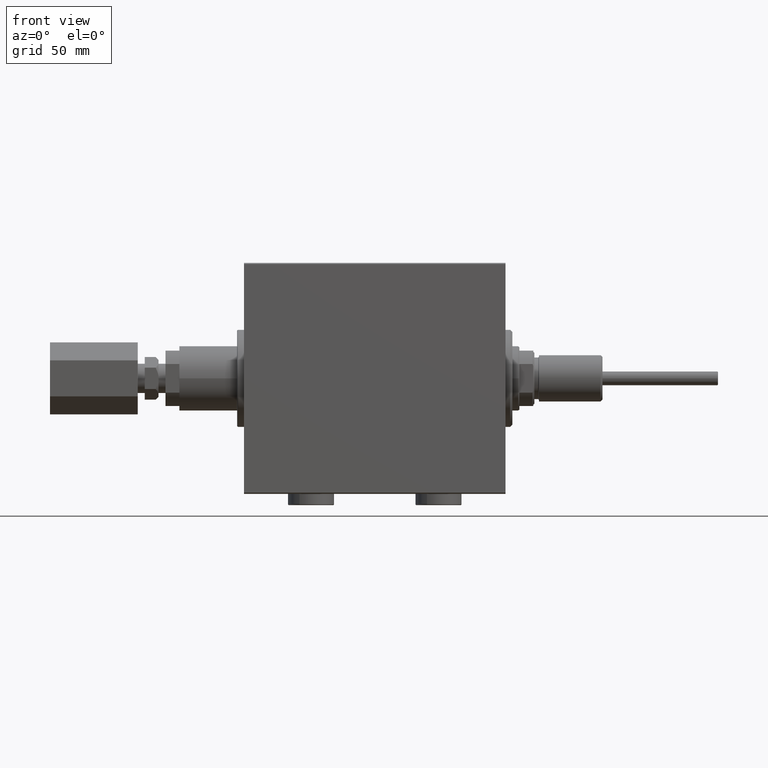
[diagram: clean part render]
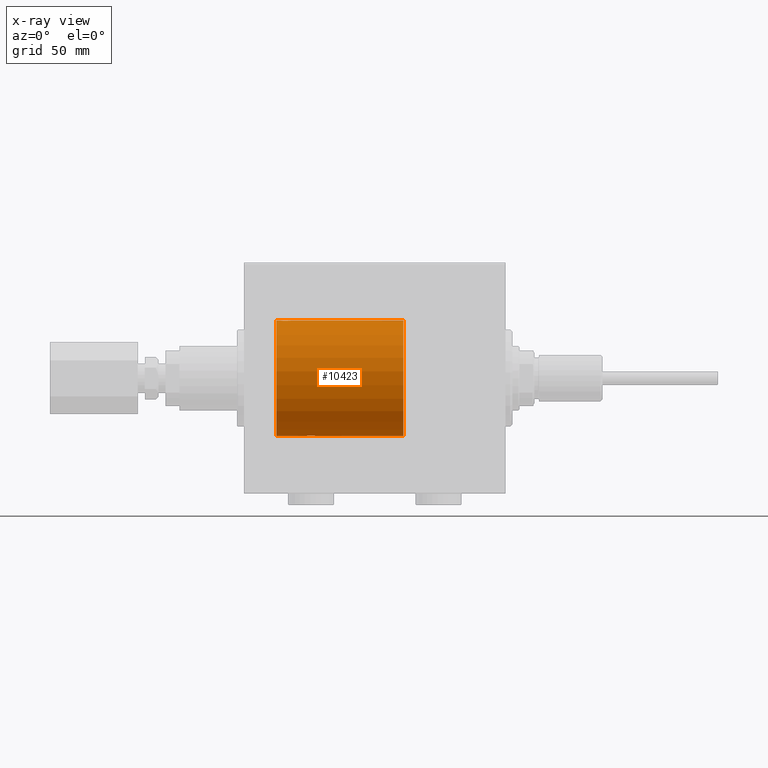
[diagram: x-ray — body ghosted, one internal face saturated and labeled with its STEP entity id]
A machine part, front view, then the same camera in x-ray: the body is ghosted and one INTERNAL B-rep face — a face not visible from any outside direction — is saturated and labeled: STEP entity #10423.
In plain terms, the highlighted cylindrical surface (partial cylindrical patch) has radius 25 mm, axis along (1, 0, -0).
Its self-contained STEP definition (entity closure, byte-faithful):
#219 = B_SPLINE_CURVE_WITH_KNOTS ( 'NONE', 3,
 ( #24403, #5950, #38771, #42728, #5705, #2009, #47144, #27876, #17019, #35528, #8916, #35763, #13335, #23930, #24168, #27415, #20695, #42969, #5469, #28361, #12618, #31824, #39010, #4992, #43447, #19983, #43209, #42493, #9393, #46896, #8687, #35304, #1289, #31357 ),
 .UNSPECIFIED., .F., .F.,
 ( 4, 2, 2, 2, 2, 2, 2, 2, 2, 2, 2, 2, 2, 2, 2, 2, 4 ),
 ( 5.636207356056362162E-21, 0.0004888140276038924377, 0.0009776280552077848754, 0.001466442082811677313, 0.001955256110415569751, 0.002444070138019462188, 0.002932884165623354626, 0.003421698193227247064, 0.003910512220831139502, 0.004399326248435031506, 0.004888140276038924377, 0.005376954303642817248, 0.005865768331246709252, 0.006354582358850601256, 0.006843396386454494128, 0.007332210414058386999, 0.007821024441662279003 ),
 .UNSPECIFIED. ) ;
#249 = VERTEX_POINT ( 'NONE', #18396 ) ;
#897 = EDGE_LOOP ( 'NONE', ( #971, #32752, #39483, #18009, #22902, #12848, #31761, #8625 ) ) ;
#971 = ORIENTED_EDGE ( 'NONE', *, *, #34905, .F. ) ;
#1289 = CARTESIAN_POINT ( 'NONE',  ( 92.70000000000000284, 0.1632133729155548774, 25.00000000000000355 ) ) ;
#1332 = AXIS2_PLACEMENT_3D ( 'NONE', #35415, #13696, #9745 ) ;
#1381 = AXIS2_PLACEMENT_3D ( 'NONE', #28736, #14193, #3119 ) ;
#2009 = CARTESIAN_POINT ( 'NONE',  ( 97.44651678820869733, 1.109060198064586666, 24.97584694923137505 ) ) ;
#2014 = AXIS2_PLACEMENT_3D ( 'NONE', #9703, #44029, #47461 ) ;
#2017 = VECTOR ( 'NONE', #31748, 1000.000000000000000 ) ;
#2165 = CARTESIAN_POINT ( 'NONE',  ( 84.03592030623264009, 2.499940606140151900, -24.87469189697261029 ) ) ;
#3119 = DIRECTION ( 'NONE',  ( 0.000000000000000000, 0.000000000000000000, 1.000000000000000000 ) ) ;
#3634 = CARTESIAN_POINT ( 'NONE',  ( 86.36861818252482692, 1.254434665533512794, -24.96887599906796495 ) ) ;
#4116 = CARTESIAN_POINT ( 'NONE',  ( 86.18758834612096109, 1.525124164792379222, -24.95380474534677262 ) ) ;
#4992 = CARTESIAN_POINT ( 'NONE',  ( 93.67549655812818798, 1.988066470813627307, 24.92099187803980698 ) ) ;
#5158 = VECTOR ( 'NONE', #34353, 1000.000000000000000 ) ;
#5399 = LINE ( 'NONE', #16702, #2017 ) ;
#5469 = CARTESIAN_POINT ( 'NONE',  ( 94.87198227724999811, 2.483775543901323601, 24.87633190989611620 ) ) ;
#5491 = CARTESIAN_POINT ( 'NONE',  ( 99.20000000000000284, 3.061616997868382254E-15, -25.00000000000000000 ) ) ;
#5702 = EDGE_CURVE ( 'NONE', #24055, #40022, #10702, .T. ) ;
#5705 = CARTESIAN_POINT ( 'NONE',  ( 97.57206391457593497, 0.8063280894284455824, 24.98745245851526064 ) ) ;
#5829 = CYLINDRICAL_SURFACE ( 'NONE', #1381, 25.00000000000000000 ) ;
#5950 = CARTESIAN_POINT ( 'NONE',  ( 97.70000000000000284, 0.1652919547268412448, 24.99999999999999289 ) ) ;
#6114 = CARTESIAN_POINT ( 'NONE',  ( 85.00463913299816454, 2.372637051600642089, -24.88723676875457969 ) ) ;
#6225 = CARTESIAN_POINT ( 'NONE',  ( 44.20000000000000284, 0.000000000000000000, 25.00000000000000000 ) ) ;
#6355 = CARTESIAN_POINT ( 'NONE',  ( 81.71623131730842715, 0.3278008924763887166, -24.99836206720143750 ) ) ;
#6849 = CARTESIAN_POINT ( 'NONE',  ( 86.68364115014315985, 0.3289998300458046310, -24.99834914448732803 ) ) ;
#8625 = ORIENTED_EDGE ( 'NONE', *, *, #19012, .T. ) ;
#8687 = CARTESIAN_POINT ( 'NONE',  ( 92.78033563915884940, 0.6495680347195791349, 24.99207398768918864 ) ) ;
#8916 = CARTESIAN_POINT ( 'NONE',  ( 96.72633503512339814, 1.986787236855537264, 24.92109717386378165 ) ) ;
#9317 = CARTESIAN_POINT ( 'NONE',  ( 82.31730287024107895, 1.652881481536647268, -24.94556728625771669 ) ) ;
#9393 = CARTESIAN_POINT ( 'NONE',  ( 92.95307623591048696, 1.108237982093033480, 24.97588368351298982 ) ) ;
#9703 = CARTESIAN_POINT ( 'NONE',  ( 44.20000000000000284, 0.000000000000000000, 0.000000000000000000 ) ) ;
#9745 = DIRECTION ( 'NONE',  ( 0.000000000000000000, 0.000000000000000000, 1.000000000000000000 ) ) ;
#10043 = CARTESIAN_POINT ( 'NONE',  ( 81.70000000000000284, -1.201333969079745055E-15, -25.00000000000000000 ) ) ;
#10423 = ADVANCED_FACE ( 'NONE', ( #35891 ), #5829, .F. ) ;
#10702 = CIRCLE ( 'NONE', #2014, 25.00000000000000000 ) ;
#11252 = CARTESIAN_POINT ( 'NONE',  ( 86.57237109198584335, 0.8054273576766418641, -24.98748174524255461 ) ) ;
#11519 = CIRCLE ( 'NONE', #1332, 25.00000000000000000 ) ;
#12138 = VERTEX_POINT ( 'NONE', #22134 ) ;
#12146 = B_SPLINE_CURVE_WITH_KNOTS ( 'NONE', 3,
 ( #10043, #25059, #6355, #21353, #20613, #21601, #28280, #28039, #9317, #17182, #35680, #36416, #31981, #43364, #20858, #35924, #2165, #32226, #47297, #13485, #6114, #37888, #40626, #14462, #22091, #45066, #4116, #3634, #25805, #11252, #14705, #6849, #41114, #33451 ),
 .UNSPECIFIED., .F., .F.,
 ( 4, 2, 2, 2, 2, 2, 2, 2, 2, 2, 2, 2, 2, 2, 2, 2, 4 ),
 ( 1.839871823107361655E-19, 0.0004888140276038956903, 0.0009776280552077911638, 0.001466442082811686854, 0.001955256110415582328, 0.002444070138019477801, 0.002932884165623373708, 0.003421698193227268748, 0.003910512220831164655, 0.004399326248435060129, 0.004888140276038954735, 0.005376954303642851075, 0.005865768331246746549, 0.006354582358850642890, 0.006843396386454538363, 0.007332210414058434704, 0.007821024441662331045 ),
 .UNSPECIFIED. ) ;
#12618 = CARTESIAN_POINT ( 'NONE',  ( 94.39536086700186956, 2.372637051600611002, 24.88723676875459034 ) ) ;
#12643 = LINE ( 'NONE', #5491, #13124 ) ;
#12848 = ORIENTED_EDGE ( 'NONE', *, *, #5702, .T. ) ;
#13124 = VECTOR ( 'NONE', #46678, 1000.000000000000000 ) ;
#13335 = CARTESIAN_POINT ( 'NONE',  ( 96.30765995523903200, 2.247131495942852997, 24.89888190765473297 ) ) ;
#13485 = CARTESIAN_POINT ( 'NONE',  ( 84.84874342732641139, 2.419890192637131232, -24.88262770889313202 ) ) ;
#13696 = DIRECTION ( 'NONE',  ( -1.000000000000000000, 0.000000000000000000, 0.000000000000000000 ) ) ;
#14193 = DIRECTION ( 'NONE',  ( -1.000000000000000000, -0.000000000000000000, -0.000000000000000000 ) ) ;
#14462 = CARTESIAN_POINT ( 'NONE',  ( 85.72450344187178928, 1.988066470813649955, -24.92099187803979632 ) ) ;
#14591 = EDGE_CURVE ( 'NONE', #44485, #44871, #219, .T. ) ;
#14705 = CARTESIAN_POINT ( 'NONE',  ( 86.61966436084118470, 0.6495680347195885718, -24.99207398768919219 ) ) ;
#16702 = CARTESIAN_POINT ( 'NONE',  ( 99.20000000000000284, 0.000000000000000000, 25.00000000000000000 ) ) ;
#17019 = CARTESIAN_POINT ( 'NONE',  ( 97.08269712975892674, 1.652881481536627284, 24.94556728625771669 ) ) ;
#17182 = CARTESIAN_POINT ( 'NONE',  ( 82.54785002149175455, 1.883339088673210426, -24.92922739080160710 ) ) ;
#17694 = VECTOR ( 'NONE', #46457, 1000.000000000000000 ) ;
#17905 = CARTESIAN_POINT ( 'NONE',  ( 97.70000000000000284, -5.800234900828521566E-18, 25.00000000000000000 ) ) ;
#18009 = ORIENTED_EDGE ( 'NONE', *, *, #14591, .T. ) ;
#18396 = CARTESIAN_POINT ( 'NONE',  ( 86.70000000000001705, 3.061616978466108082E-15, -25.00000000000000000 ) ) ;
#19012 = EDGE_CURVE ( 'NONE', #29844, #249, #12146, .T. ) ;
#19771 = CARTESIAN_POINT ( 'NONE',  ( 99.20000000000000284, 3.061616997868382254E-15, -25.00000000000000000 ) ) ;
#19983 = CARTESIAN_POINT ( 'NONE',  ( 93.31576698070014686, 1.651337078997071384, 24.94567646296265551 ) ) ;
#20370 = CARTESIAN_POINT ( 'NONE',  ( 81.70000000000000284, -1.201333969079745055E-15, -25.00000000000000000 ) ) ;
#20613 = CARTESIAN_POINT ( 'NONE',  ( 81.82793608542407071, 0.8063280894284560185, -24.98745245851526064 ) ) ;
#20695 = CARTESIAN_POINT ( 'NONE',  ( 95.36407969376736560, 2.499940606140120813, 24.87469189697262095 ) ) ;
#20858 = CARTESIAN_POINT ( 'NONE',  ( 83.55083484000675753, 2.419847904056447785, -24.88263203448060779 ) ) ;
#21353 = CARTESIAN_POINT ( 'NONE',  ( 81.77980964520837404, 0.6474866336855796822, -24.99212517028518477 ) ) ;
#21601 = CARTESIAN_POINT ( 'NONE',  ( 81.95348321179130835, 1.109060198064600433, -24.97584694923138215 ) ) ;
#22091 = CARTESIAN_POINT ( 'NONE',  ( 85.85075206354797217, 1.884745564839666487, -24.92912799315484662 ) ) ;
#22134 = CARTESIAN_POINT ( 'NONE',  ( 99.20000000000000284, 0.000000000000000000, 25.00000000000000000 ) ) ;
#22902 = ORIENTED_EDGE ( 'NONE', *, *, #44698, .T. ) ;
#23930 = CARTESIAN_POINT ( 'NONE',  ( 96.00683588887133624, 2.371819214216734473, 24.88731391344728294 ) ) ;
#24055 = VERTEX_POINT ( 'NONE', #6225 ) ;
#24168 = CARTESIAN_POINT ( 'NONE',  ( 95.84916515999327657, 2.419847904056417143, 24.88263203448060423 ) ) ;
#24403 = CARTESIAN_POINT ( 'NONE',  ( 97.70000000000000284, -5.800234900828521566E-18, 25.00000000000000000 ) ) ;
#25059 = CARTESIAN_POINT ( 'NONE',  ( 81.70000000000000284, 0.1652919547268407729, -25.00000000000000355 ) ) ;
#25805 = CARTESIAN_POINT ( 'NONE',  ( 86.44692376408954715, 1.108237982093043250, -24.97588368351298627 ) ) ;
#26166 = CARTESIAN_POINT ( 'NONE',  ( 99.20000000000000284, 3.061616997868382254E-15, -25.00000000000000000 ) ) ;
#27415 = CARTESIAN_POINT ( 'NONE',  ( 95.52637449227346167, 2.484060984458426269, 24.87630362147114127 ) ) ;
#27876 = CARTESIAN_POINT ( 'NONE',  ( 97.18824666821940639, 1.524323445682826739, 24.95385641887458661 ) ) ;
#28039 = CARTESIAN_POINT ( 'NONE',  ( 82.21175333178058509, 1.524323445682844280, -24.95385641887458306 ) ) ;
#28280 = CARTESIAN_POINT ( 'NONE',  ( 82.03029543590132278, 1.252624798282899077, -24.96896960740658500 ) ) ;
#28361 = CARTESIAN_POINT ( 'NONE',  ( 94.55125657267362271, 2.419890192637103254, 24.88262770889313913 ) ) ;
#28736 = CARTESIAN_POINT ( 'NONE',  ( 99.20000000000000284, 0.000000000000000000, 0.000000000000000000 ) ) ;
#29844 = VERTEX_POINT ( 'NONE', #20370 ) ;
#31357 = CARTESIAN_POINT ( 'NONE',  ( 92.70000000000000284, -1.940203396391078535E-23, 25.00000000000000000 ) ) ;
#31748 = DIRECTION ( 'NONE',  ( -1.000000000000000000, -0.000000000000000000, -0.000000000000000000 ) ) ;
#31761 = ORIENTED_EDGE ( 'NONE', *, *, #32064, .F. ) ;
#31770 = EDGE_CURVE ( 'NONE', #12138, #44485, #5399, .T. ) ;
#31824 = CARTESIAN_POINT ( 'NONE',  ( 94.09254763180203440, 2.247309494740935776, 24.89886665287248135 ) ) ;
#31981 = CARTESIAN_POINT ( 'NONE',  ( 83.09234004476095947, 2.247131495942878310, -24.89888190765472942 ) ) ;
#32064 = EDGE_CURVE ( 'NONE', #29844, #40022, #42278, .T. ) ;
#32226 = CARTESIAN_POINT ( 'NONE',  ( 84.36226476613386183, 2.500059064463620473, -24.87467999146394959 ) ) ;
#32752 = ORIENTED_EDGE ( 'NONE', *, *, #47505, .F. ) ;
#33110 = VERTEX_POINT ( 'NONE', #26166 ) ;
#33451 = CARTESIAN_POINT ( 'NONE',  ( 86.70000000000001705, 3.061616978466108082E-15, -25.00000000000000000 ) ) ;
#34353 = DIRECTION ( 'NONE',  ( -1.000000000000000000, -0.000000000000000000, -0.000000000000000000 ) ) ;
#34905 = EDGE_CURVE ( 'NONE', #33110, #249, #12643, .T. ) ;
#35304 = CARTESIAN_POINT ( 'NONE',  ( 92.71635884985691689, 0.3289998300457990243, 24.99834914448732448 ) ) ;
#35415 = CARTESIAN_POINT ( 'NONE',  ( 99.20000000000000284, 0.000000000000000000, 0.000000000000000000 ) ) ;
#35528 = CARTESIAN_POINT ( 'NONE',  ( 96.85214997850826535, 1.883339088673186890, 24.92922739080161065 ) ) ;
#35680 = CARTESIAN_POINT ( 'NONE',  ( 82.67366496487657912, 1.986787236855559691, -24.92109717386378165 ) ) ;
#35763 = CARTESIAN_POINT ( 'NONE',  ( 96.45304113529935819, 2.169541443998001640, 24.90585268157805032 ) ) ;
#35891 = FACE_OUTER_BOUND ( 'NONE', #897, .T. ) ;
#35924 = CARTESIAN_POINT ( 'NONE',  ( 83.87362550772657244, 2.484060984458457355, -24.87630362147113772 ) ) ;
#36416 = CARTESIAN_POINT ( 'NONE',  ( 82.94695886470064750, 2.169541443998026953, -24.90585268157804677 ) ) ;
#37888 = CARTESIAN_POINT ( 'NONE',  ( 85.30745236819798549, 2.247309494740967750, -24.89886665287248491 ) ) ;
#38771 = CARTESIAN_POINT ( 'NONE',  ( 97.68376868269162117, 0.3278008924763861631, 24.99836206720144105 ) ) ;
#39010 = CARTESIAN_POINT ( 'NONE',  ( 93.94628466518807386, 2.169035936979771151, 24.90589343070811168 ) ) ;
#39483 = ORIENTED_EDGE ( 'NONE', *, *, #31770, .T. ) ;
#39763 = LINE ( 'NONE', #43246, #17694 ) ;
#40022 = VERTEX_POINT ( 'NONE', #46008 ) ;
#40505 = CARTESIAN_POINT ( 'NONE',  ( 92.70000000000000284, -1.940203396391078535E-23, 25.00000000000000000 ) ) ;
#40626 = CARTESIAN_POINT ( 'NONE',  ( 85.45371533481194604, 2.169035936979796464, -24.90589343070811168 ) ) ;
#41114 = CARTESIAN_POINT ( 'NONE',  ( 86.70000000000004547, 0.1632133729155565149, -25.00000000000001421 ) ) ;
#42278 = LINE ( 'NONE', #19771, #5158 ) ;
#42493 = CARTESIAN_POINT ( 'NONE',  ( 93.03138181747520719, 1.254434665533499693, 24.96887599906795785 ) ) ;
#42728 = CARTESIAN_POINT ( 'NONE',  ( 97.62019035479158902, 0.6474866336855745752, 24.99212517028518121 ) ) ;
#42969 = CARTESIAN_POINT ( 'NONE',  ( 95.03773523386620070, 2.500059064463590275, 24.87467999146395314 ) ) ;
#43209 = CARTESIAN_POINT ( 'NONE',  ( 93.21241165387910144, 1.525124164792362347, 24.95380474534677262 ) ) ;
#43246 = CARTESIAN_POINT ( 'NONE',  ( 99.20000000000000284, 0.000000000000000000, 25.00000000000000000 ) ) ;
#43364 = CARTESIAN_POINT ( 'NONE',  ( 83.39316411112868366, 2.371819214216762450, -24.88731391344728294 ) ) ;
#43447 = CARTESIAN_POINT ( 'NONE',  ( 93.54924793645207615, 1.884745564839642951, 24.92912799315485017 ) ) ;
#44029 = DIRECTION ( 'NONE',  ( -1.000000000000000000, 0.000000000000000000, 0.000000000000000000 ) ) ;
#44485 = VERTEX_POINT ( 'NONE', #17905 ) ;
#44698 = EDGE_CURVE ( 'NONE', #44871, #24055, #39763, .T. ) ;
#44871 = VERTEX_POINT ( 'NONE', #40505 ) ;
#45066 = CARTESIAN_POINT ( 'NONE',  ( 86.08423301929988725, 1.651337078997092034, -24.94567646296264840 ) ) ;
#46008 = CARTESIAN_POINT ( 'NONE',  ( 44.20000000000000284, 3.061616997868382254E-15, -25.00000000000000000 ) ) ;
#46457 = DIRECTION ( 'NONE',  ( -1.000000000000000000, -0.000000000000000000, -0.000000000000000000 ) ) ;
#46678 = DIRECTION ( 'NONE',  ( -1.000000000000000000, -0.000000000000000000, -0.000000000000000000 ) ) ;
#46896 = CARTESIAN_POINT ( 'NONE',  ( 92.82762890801417655, 0.8054273576766354248, 24.98748174524255461 ) ) ;
#47144 = CARTESIAN_POINT ( 'NONE',  ( 97.36970456409868291, 1.252624798282884644, 24.96896960740658500 ) ) ;
#47297 = CARTESIAN_POINT ( 'NONE',  ( 84.52801772275006442, 2.483775543901352467, -24.87633190989611265 ) ) ;
#47461 = DIRECTION ( 'NONE',  ( 0.000000000000000000, 0.000000000000000000, 1.000000000000000000 ) ) ;
#47505 = EDGE_CURVE ( 'NONE', #12138, #33110, #11519, .T. ) ;